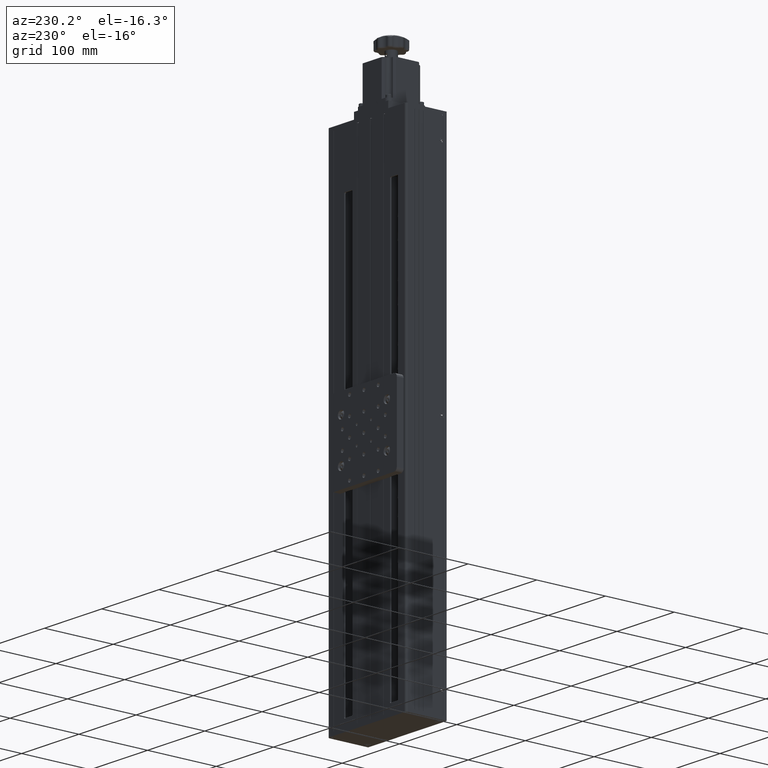
[diagram: clean part render]
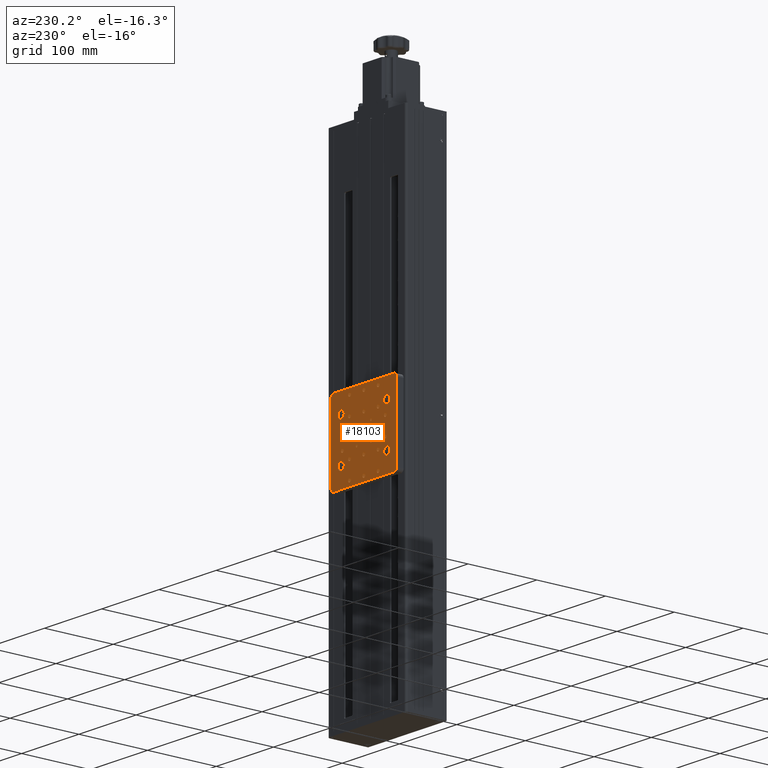
[diagram: same view with one face highlighted and labeled with its STEP entity id]
A machine part, auxiliary view. The second image highlights one B-rep face of the part: STEP entity #18103.
In plain terms, the highlighted planar face has unit normal (0, -1, 0).
Its self-contained STEP definition (entity closure, byte-faithful):
#7 = DIRECTION ( 'NONE',  ( -1.581389297847712642E-17, 1.000000000000000000, -6.467343205884651130E-19 ) ) ;
#13 = EDGE_CURVE ( 'NONE', #4402, #17654, #4426, .T. ) ;
#15 = EDGE_CURVE ( 'NONE', #2237, #17224, #24270, .T. ) ;
#38 = AXIS2_PLACEMENT_3D ( 'NONE', #16164, #7040, #18786 ) ;
#273 = CARTESIAN_POINT ( 'NONE',  ( 14.38919164396006245, 60.58234937935193898, -18.29945070542932939 ) ) ;
#285 = ORIENTED_EDGE ( 'NONE', *, *, #21064, .F. ) ;
#374 = CARTESIAN_POINT ( 'NONE',  ( 14.38919164396006245, 60.58234937935193898, 34.20054929457066351 ) ) ;
#377 = DIRECTION ( 'NONE',  ( 0.000000000000000000, 0.000000000000000000, 1.000000000000000000 ) ) ;
#496 = DIRECTION ( 'NONE',  ( 0.000000000000000000, 0.000000000000000000, 1.000000000000000000 ) ) ;
#526 = DIRECTION ( 'NONE',  ( 0.000000000000000000, 0.000000000000000000, 1.000000000000000000 ) ) ;
#547 = FACE_BOUND ( 'NONE', #9324, .T. ) ;
#634 = CARTESIAN_POINT ( 'NONE',  ( 41.88919164396007488, 60.58234937935193187, 34.20054929457067772 ) ) ;
#668 = CARTESIAN_POINT ( 'NONE',  ( -63.11080835603995354, 60.58234937935193187, -70.79945070542933649 ) ) ;
#773 = AXIS2_PLACEMENT_3D ( 'NONE', #13000, #16385, #28269 ) ;
#798 = CARTESIAN_POINT ( 'NONE',  ( 1.889191643960062450, 60.58234937935193898, -30.79945070542932939 ) ) ;
#829 = FACE_BOUND ( 'NONE', #3824, .T. ) ;
#895 = VECTOR ( 'NONE', #21066, 1000.000000000000000 ) ;
#962 = EDGE_CURVE ( 'NONE', #14524, #16473, #10311, .T. ) ;
#978 = DIRECTION ( 'NONE',  ( -1.581389297847712642E-17, 1.000000000000000000, -6.467343205884651130E-19 ) ) ;
#987 = FACE_BOUND ( 'NONE', #28330, .T. ) ;
#1002 = AXIS2_PLACEMENT_3D ( 'NONE', #23223, #18912, #4858 ) ;
#1006 = DIRECTION ( 'NONE',  ( -1.581389297847712642E-17, 1.000000000000000000, -6.467343205884651130E-19 ) ) ;
#1042 = CARTESIAN_POINT ( 'NONE',  ( -35.61080835603993933, 60.58234937935193898, -68.29945070542933649 ) ) ;
#1094 = CARTESIAN_POINT ( 'NONE',  ( -10.61080835603993755, 60.58234937935193898, -43.29945070542932939 ) ) ;
#1158 = EDGE_CURVE ( 'NONE', #29460, #10063, #5322, .T. ) ;
#1240 = EDGE_CURVE ( 'NONE', #4550, #19973, #10984, .T. ) ;
#1248 = DIRECTION ( 'NONE',  ( -1.581389297847712642E-17, 1.000000000000000000, -6.467343205884651130E-19 ) ) ;
#1445 = EDGE_CURVE ( 'NONE', #12245, #12937, #2865, .T. ) ;
#1527 = DIRECTION ( 'NONE',  ( 0.000000000000000000, 0.000000000000000000, 1.000000000000000000 ) ) ;
#1571 = DIRECTION ( 'NONE',  ( 0.000000000000000000, 0.000000000000000000, 1.000000000000000000 ) ) ;
#1582 = CARTESIAN_POINT ( 'NONE',  ( -10.61080835603993577, 60.58234937935193898, -68.29945070542933649 ) ) ;
#1585 = FACE_BOUND ( 'NONE', #13759, .T. ) ;
#1587 = AXIS2_PLACEMENT_3D ( 'NONE', #22680, #8781, #6477 ) ;
#1588 = CARTESIAN_POINT ( 'NONE',  ( 26.88919164396007844, 60.58234937935193898, -28.29945070542933649 ) ) ;
#1609 = AXIS2_PLACEMENT_3D ( 'NONE', #8226, #30317, #24895 ) ;
#1651 = AXIS2_PLACEMENT_3D ( 'NONE', #3746, #27525, #10378 ) ;
#1848 = EDGE_LOOP ( 'NONE', ( #6954, #24005 ) ) ;
#1850 = CARTESIAN_POINT ( 'NONE',  ( -50.61080835603994643, 60.58234937935193187, -53.79945070542932228 ) ) ;
#2147 = EDGE_CURVE ( 'NONE', #15525, #16985, #29778, .T. ) ;
#2180 = VECTOR ( 'NONE', #13756, 1000.000000000000000 ) ;
#2237 = VERTEX_POINT ( 'NONE', #24155 ) ;
#2304 = ORIENTED_EDGE ( 'NONE', *, *, #8244, .F. ) ;
#2329 = EDGE_CURVE ( 'NONE', #9898, #27392, #3456, .T. ) ;
#2330 = CARTESIAN_POINT ( 'NONE',  ( -68.11080835603995354, 60.58234937935193187, -70.79945070542933649 ) ) ;
#2380 = DIRECTION ( 'NONE',  ( -1.581389297847712642E-17, 1.000000000000000000, -6.467343205884651130E-19 ) ) ;
#2398 = AXIS2_PLACEMENT_3D ( 'NONE', #11532, #23251, #14156 ) ;
#2473 = ORIENTED_EDGE ( 'NONE', *, *, #27346, .F. ) ;
#2531 = DIRECTION ( 'NONE',  ( 0.000000000000000000, 0.000000000000000000, 1.000000000000000000 ) ) ;
#2565 = ORIENTED_EDGE ( 'NONE', *, *, #18290, .F. ) ;
#2603 = AXIS2_PLACEMENT_3D ( 'NONE', #23816, #16876, #28319 ) ;
#2744 = EDGE_CURVE ( 'NONE', #26838, #4789, #4079, .T. ) ;
#2780 = DIRECTION ( 'NONE',  ( 0.000000000000000000, 0.000000000000000000, 1.000000000000000000 ) ) ;
#2829 = ORIENTED_EDGE ( 'NONE', *, *, #15, .T. ) ;
#2865 = CIRCLE ( 'NONE', #6837, 5.499999999999998224 ) ;
#2871 = VERTEX_POINT ( 'NONE', #4761 ) ;
#2875 = ORIENTED_EDGE ( 'NONE', *, *, #26592, .F. ) ;
#2912 = EDGE_CURVE ( 'NONE', #26329, #22225, #10505, .T. ) ;
#3017 = VERTEX_POINT ( 'NONE', #22042 ) ;
#3040 = CIRCLE ( 'NONE', #21280, 1.649999999999988365 ) ;
#3042 = DIRECTION ( 'NONE',  ( -1.581389297847712642E-17, 1.000000000000000000, -6.467343205884651130E-19 ) ) ;
#3136 = DIRECTION ( 'NONE',  ( -1.581389297847712642E-17, 1.000000000000000000, -6.467343205884651130E-19 ) ) ;
#3141 = AXIS2_PLACEMENT_3D ( 'NONE', #21196, #7593, #18737 ) ;
#3226 = VERTEX_POINT ( 'NONE', #25596 ) ;
#3304 = PLANE ( 'NONE',  #4975 ) ;
#3364 = EDGE_CURVE ( 'NONE', #15874, #7721, #28294, .T. ) ;
#3441 = EDGE_LOOP ( 'NONE', ( #13254, #24602 ) ) ;
#3443 = DIRECTION ( 'NONE',  ( 0.000000000000000000, 0.000000000000000000, -1.000000000000000000 ) ) ;
#3453 = FACE_BOUND ( 'NONE', #16244, .T. ) ;
#3456 = LINE ( 'NONE', #3919, #23844 ) ;
#3467 = CIRCLE ( 'NONE', #5457, 2.499999999999988454 ) ;
#3585 = CARTESIAN_POINT ( 'NONE',  ( 1.889191643960062894, 60.58234937935193898, -32.44945070542931376 ) ) ;
#3615 = AXIS2_PLACEMENT_3D ( 'NONE', #19448, #21609, #12352 ) ;
#3718 = VERTEX_POINT ( 'NONE', #25860 ) ;
#3746 = CARTESIAN_POINT ( 'NONE',  ( -35.61080835603993933, 60.58234937935193898, 6.700549294570673275 ) ) ;
#3785 = ORIENTED_EDGE ( 'NONE', *, *, #2744, .F. ) ;
#3824 = EDGE_LOOP ( 'NONE', ( #17802, #22620 ) ) ;
#3846 = AXIS2_PLACEMENT_3D ( 'NONE', #12714, #28767, #26607 ) ;
#3890 = EDGE_CURVE ( 'NONE', #7568, #16917, #29228, .T. ) ;
#3919 = CARTESIAN_POINT ( 'NONE',  ( 46.88919164396006778, 60.58234937935193898, 39.20054929457067772 ) ) ;
#3923 = EDGE_CURVE ( 'NONE', #3017, #22243, #5550, .T. ) ;
#3991 = DIRECTION ( 'NONE',  ( 0.000000000000000000, 0.000000000000000000, 1.000000000000000000 ) ) ;
#4011 = CARTESIAN_POINT ( 'NONE',  ( 14.38919164396006245, 60.58234937935193898, 9.200549294570661729 ) ) ;
#4079 = CIRCLE ( 'NONE', #15925, 2.499999999999988454 ) ;
#4089 = ORIENTED_EDGE ( 'NONE', *, *, #23798, .F. ) ;
#4095 = EDGE_LOOP ( 'NONE', ( #20908, #22479 ) ) ;
#4217 = AXIS2_PLACEMENT_3D ( 'NONE', #15098, #24515, #22658 ) ;
#4321 = VERTEX_POINT ( 'NONE', #29187 ) ;
#4349 = AXIS2_PLACEMENT_3D ( 'NONE', #6879, #16295, #16598 ) ;
#4402 = VERTEX_POINT ( 'NONE', #4011 ) ;
#4426 = CIRCLE ( 'NONE', #5408, 2.499999999999988454 ) ;
#4550 = VERTEX_POINT ( 'NONE', #19884 ) ;
#4653 = CIRCLE ( 'NONE', #22401, 2.499999999999988454 ) ;
#4678 = DIRECTION ( 'NONE',  ( -1.581389297847712642E-17, 1.000000000000000000, -6.467343205884651130E-19 ) ) ;
#4761 = CARTESIAN_POINT ( 'NONE',  ( 1.889191643960390854, 60.58234937935193898, -7.449450705429306652 ) ) ;
#4789 = VERTEX_POINT ( 'NONE', #15563 ) ;
#4807 = CARTESIAN_POINT ( 'NONE',  ( 41.88919164396007488, 60.58234937935193898, 39.20054929457067772 ) ) ;
#4841 = EDGE_CURVE ( 'NONE', #9900, #29660, #28876, .T. ) ;
#4858 = DIRECTION ( 'NONE',  ( 0.000000000000000000, 0.000000000000000000, 1.000000000000000000 ) ) ;
#4873 = EDGE_CURVE ( 'NONE', #4550, #17341, #22455, .T. ) ;
#4937 = DIRECTION ( 'NONE',  ( 0.000000000000000000, 0.000000000000000000, 1.000000000000000000 ) ) ;
#4948 = DIRECTION ( 'NONE',  ( 0.000000000000000000, 0.000000000000000000, 1.000000000000000000 ) ) ;
#4975 = AXIS2_PLACEMENT_3D ( 'NONE', #19373, #5623, #10397 ) ;
#4991 = DIRECTION ( 'NONE',  ( -1.000000000000000000, -1.581389297847712334E-17, -2.775557561562891351E-17 ) ) ;
#4992 = CIRCLE ( 'NONE', #38, 2.499999999999988454 ) ;
#5005 = CARTESIAN_POINT ( 'NONE',  ( 46.88919164396006778, 60.58234937935193187, -18.19945070542932442 ) ) ;
#5087 = AXIS2_PLACEMENT_3D ( 'NONE', #668, #3136, #3443 ) ;
#5111 = CIRCLE ( 'NONE', #1651, 2.499999999999988454 ) ;
#5119 = AXIS2_PLACEMENT_3D ( 'NONE', #16760, #15040, #377 ) ;
#5155 = CIRCLE ( 'NONE', #11062, 5.499999999999998224 ) ;
#5272 = EDGE_CURVE ( 'NONE', #22243, #3017, #21691, .T. ) ;
#5318 = FACE_BOUND ( 'NONE', #28488, .T. ) ;
#5322 = CIRCLE ( 'NONE', #3846, 5.499999999999998224 ) ;
#5408 = AXIS2_PLACEMENT_3D ( 'NONE', #10219, #23972, #496 ) ;
#5428 = ORIENTED_EDGE ( 'NONE', *, *, #4841, .F. ) ;
#5457 = AXIS2_PLACEMENT_3D ( 'NONE', #9380, #23866, #18805 ) ;
#5521 = EDGE_CURVE ( 'NONE', #3226, #20289, #11347, .T. ) ;
#5550 = CIRCLE ( 'NONE', #1609, 2.499999999999988454 ) ;
#5580 = DIRECTION ( 'NONE',  ( -1.581389297847712642E-17, 1.000000000000000000, -6.467343205884651130E-19 ) ) ;
#5623 = DIRECTION ( 'NONE',  ( 1.581389297847712642E-17, -1.000000000000000000, 6.467343205884923649E-19 ) ) ;
#5638 = AXIS2_PLACEMENT_3D ( 'NONE', #30530, #27737, #30065 ) ;
#5692 = FACE_BOUND ( 'NONE', #24685, .T. ) ;
#5803 = ORIENTED_EDGE ( 'NONE', *, *, #17291, .F. ) ;
#5810 = AXIS2_PLACEMENT_3D ( 'NONE', #1582, #978, #22431 ) ;
#5826 = AXIS2_PLACEMENT_3D ( 'NONE', #22681, #13586, #1527 ) ;
#5958 = EDGE_CURVE ( 'NONE', #8636, #23854, #15783, .T. ) ;
#6120 = EDGE_LOOP ( 'NONE', ( #24119, #29678 ) ) ;
#6212 = AXIS2_PLACEMENT_3D ( 'NONE', #10774, #30089, #11235 ) ;
#6367 = AXIS2_PLACEMENT_3D ( 'NONE', #634, #5580, #7751 ) ;
#6388 = VECTOR ( 'NONE', #4991, 1000.000000000000000 ) ;
#6477 = DIRECTION ( 'NONE',  ( 0.000000000000000000, 0.000000000000000000, 1.000000000000000000 ) ) ;
#6502 = VERTEX_POINT ( 'NONE', #9441 ) ;
#6576 = VECTOR ( 'NONE', #28371, 1000.000000000000000 ) ;
#6651 = CARTESIAN_POINT ( 'NONE',  ( 46.88919164396006778, 60.58234937935193898, 39.20054929457067772 ) ) ;
#6709 = CIRCLE ( 'NONE', #7692, 2.499999999999988454 ) ;
#6725 = EDGE_CURVE ( 'NONE', #12937, #12245, #21000, .T. ) ;
#6787 = EDGE_CURVE ( 'NONE', #22621, #28447, #9186, .T. ) ;
#6837 = AXIS2_PLACEMENT_3D ( 'NONE', #21181, #7, #10184 ) ;
#6879 = CARTESIAN_POINT ( 'NONE',  ( -35.61080835603993933, 60.58234937935193898, -18.29945070542932939 ) ) ;
#6954 = ORIENTED_EDGE ( 'NONE', *, *, #23588, .F. ) ;
#6955 = CARTESIAN_POINT ( 'NONE',  ( -35.61080835603993933, 60.58234937935193898, -40.79945070542934360 ) ) ;
#7036 = CARTESIAN_POINT ( 'NONE',  ( 14.38919164396006245, 60.58234937935193898, -65.79945070542935071 ) ) ;
#7040 = DIRECTION ( 'NONE',  ( -1.581389297847712642E-17, 1.000000000000000000, -6.467343205884651130E-19 ) ) ;
#7186 = ORIENTED_EDGE ( 'NONE', *, *, #20208, .F. ) ;
#7188 = CARTESIAN_POINT ( 'NONE',  ( -10.61080835603993933, 60.58234937935193898, 29.20054929457068482 ) ) ;
#7206 = CIRCLE ( 'NONE', #6212, 2.499999999999988454 ) ;
#7376 = VERTEX_POINT ( 'NONE', #12116 ) ;
#7430 = CARTESIAN_POINT ( 'NONE',  ( -23.11080835603994643, 60.58234937935193898, -29.14945070542901107 ) ) ;
#7568 = VERTEX_POINT ( 'NONE', #17651 ) ;
#7593 = DIRECTION ( 'NONE',  ( -1.581389297847712642E-17, 1.000000000000000000, -6.467343205884651130E-19 ) ) ;
#7632 = EDGE_LOOP ( 'NONE', ( #12141, #19091 ) ) ;
#7643 = FACE_BOUND ( 'NONE', #26550, .T. ) ;
#7654 = VERTEX_POINT ( 'NONE', #1850 ) ;
#7692 = AXIS2_PLACEMENT_3D ( 'NONE', #13450, #1248, #10971 ) ;
#7721 = VERTEX_POINT ( 'NONE', #6955 ) ;
#7751 = DIRECTION ( 'NONE',  ( 0.000000000000000000, 0.000000000000000000, -1.000000000000000000 ) ) ;
#7793 = FACE_BOUND ( 'NONE', #16974, .T. ) ;
#7801 = VERTEX_POINT ( 'NONE', #17118 ) ;
#7839 = DIRECTION ( 'NONE',  ( 0.000000000000000000, 0.000000000000000000, 1.000000000000000000 ) ) ;
#7886 = ORIENTED_EDGE ( 'NONE', *, *, #17655, .F. ) ;
#7905 = CIRCLE ( 'NONE', #1002, 1.649999999999988365 ) ;
#7962 = CIRCLE ( 'NONE', #24238, 2.499999999999988454 ) ;
#8007 = DIRECTION ( 'NONE',  ( -1.581389297847712642E-17, 1.000000000000000000, -6.467343205884651130E-19 ) ) ;
#8094 = FACE_BOUND ( 'NONE', #18767, .T. ) ;
#8110 = CARTESIAN_POINT ( 'NONE',  ( -35.61080835603993933, 60.58234937935193898, 6.700549294570673275 ) ) ;
#8198 = LINE ( 'NONE', #6651, #2180 ) ;
#8200 = ORIENTED_EDGE ( 'NONE', *, *, #3364, .F. ) ;
#8226 = CARTESIAN_POINT ( 'NONE',  ( -10.61080835603994821, 60.58234937935193898, -18.29945070542932939 ) ) ;
#8229 = DIRECTION ( 'NONE',  ( 0.000000000000000000, 0.000000000000000000, 1.000000000000000000 ) ) ;
#8244 = EDGE_CURVE ( 'NONE', #22847, #14854, #14478, .T. ) ;
#8249 = DIRECTION ( 'NONE',  ( -1.581389297847712642E-17, 1.000000000000000000, -6.467343205884651130E-19 ) ) ;
#8319 = DIRECTION ( 'NONE',  ( 0.000000000000000000, 0.000000000000000000, 1.000000000000000000 ) ) ;
#8349 = CIRCLE ( 'NONE', #25634, 1.649999999999988365 ) ;
#8352 = CARTESIAN_POINT ( 'NONE',  ( 14.38919164396006245, 60.58234937935193898, -43.29945070542932939 ) ) ;
#8366 = AXIS2_PLACEMENT_3D ( 'NONE', #11769, #12382, #28446 ) ;
#8402 = DIRECTION ( 'NONE',  ( -1.581389297847712642E-17, 1.000000000000000000, -6.467343205884651130E-19 ) ) ;
#8465 = VECTOR ( 'NONE', #28914, 1000.000000000000000 ) ;
#8484 = CIRCLE ( 'NONE', #1587, 1.649999999999988365 ) ;
#8521 = DIRECTION ( 'NONE',  ( -1.581389297847712642E-17, 1.000000000000000000, -6.467343205884651130E-19 ) ) ;
#8571 = ORIENTED_EDGE ( 'NONE', *, *, #19721, .F. ) ;
#8599 = EDGE_CURVE ( 'NONE', #23854, #8636, #5111, .T. ) ;
#8636 = VERTEX_POINT ( 'NONE', #28145 ) ;
#8640 = AXIS2_PLACEMENT_3D ( 'NONE', #21390, #21543, #23695 ) ;
#8708 = LINE ( 'NONE', #11177, #895 ) ;
#8770 = CARTESIAN_POINT ( 'NONE',  ( -35.61080835603993933, 60.58234937935193898, 31.70054929457067416 ) ) ;
#8775 = CARTESIAN_POINT ( 'NONE',  ( -50.61080835603994643, 60.58234937935193187, 17.20054929457067061 ) ) ;
#8781 = DIRECTION ( 'NONE',  ( -1.581389297847712642E-17, 1.000000000000000000, -6.467343205884651130E-19 ) ) ;
#8788 = CARTESIAN_POINT ( 'NONE',  ( -10.61080835603993755, 60.58234937935193898, -40.79945070542934360 ) ) ;
#8827 = CARTESIAN_POINT ( 'NONE',  ( -68.11080835603995354, 60.58234937935193187, 39.20054929457067772 ) ) ;
#8852 = CIRCLE ( 'NONE', #26118, 1.649999999999988365 ) ;
#8872 = DIRECTION ( 'NONE',  ( 0.000000000000000000, 0.000000000000000000, 1.000000000000000000 ) ) ;
#8916 = VERTEX_POINT ( 'NONE', #17412 ) ;
#8932 = CARTESIAN_POINT ( 'NONE',  ( -48.11080835603994643, 60.58234937935193898, -30.79945070542933294 ) ) ;
#8988 = EDGE_CURVE ( 'NONE', #13105, #23712, #12524, .T. ) ;
#9186 = CIRCLE ( 'NONE', #26442, 2.499999999999988454 ) ;
#9230 = CARTESIAN_POINT ( 'NONE',  ( -63.11080835603992512, 60.58234937935193187, 39.20054929457067772 ) ) ;
#9324 = EDGE_LOOP ( 'NONE', ( #5803, #29207 ) ) ;
#9329 = EDGE_CURVE ( 'NONE', #7654, #29749, #5155, .T. ) ;
#9380 = CARTESIAN_POINT ( 'NONE',  ( 26.88919164396007844, 60.58234937935193898, -30.79945070542932584 ) ) ;
#9389 = EDGE_CURVE ( 'NONE', #22138, #6502, #4653, .T. ) ;
#9396 = AXIS2_PLACEMENT_3D ( 'NONE', #273, #3042, #23738 ) ;
#9410 = EDGE_LOOP ( 'NONE', ( #13459, #12697 ) ) ;
#9441 = CARTESIAN_POINT ( 'NONE',  ( 14.38919164396006245, 60.58234937935193898, -70.79945070542932228 ) ) ;
#9445 = VERTEX_POINT ( 'NONE', #3585 ) ;
#9447 = AXIS2_PLACEMENT_3D ( 'NONE', #28458, #4678, #16718 ) ;
#9477 = AXIS2_PLACEMENT_3D ( 'NONE', #15356, #1006, #17223 ) ;
#9553 = CIRCLE ( 'NONE', #3141, 1.649999999999988365 ) ;
#9599 = ORIENTED_EDGE ( 'NONE', *, *, #8988, .F. ) ;
#9615 = VERTEX_POINT ( 'NONE', #7430 ) ;
#9633 = EDGE_LOOP ( 'NONE', ( #27096, #23382 ) ) ;
#9705 = EDGE_LOOP ( 'NONE', ( #15672, #10039 ) ) ;
#9720 = CARTESIAN_POINT ( 'NONE',  ( -50.61080835603994643, 60.58234937935193187, -48.29945070542932939 ) ) ;
#9759 = CARTESIAN_POINT ( 'NONE',  ( 26.88919164396007844, 60.58234937935193898, -3.299450705429336939 ) ) ;
#9898 = VERTEX_POINT ( 'NONE', #11421 ) ;
#9900 = VERTEX_POINT ( 'NONE', #25490 ) ;
#9914 = CARTESIAN_POINT ( 'NONE',  ( 46.88919164396006778, 60.58234937935193898, -75.79945070542933649 ) ) ;
#10039 = ORIENTED_EDGE ( 'NONE', *, *, #3923, .F. ) ;
#10063 = VERTEX_POINT ( 'NONE', #8775 ) ;
#10184 = DIRECTION ( 'NONE',  ( 0.000000000000000000, 0.000000000000000000, 1.000000000000000000 ) ) ;
#10219 = CARTESIAN_POINT ( 'NONE',  ( 14.38919164396006245, 60.58234937935193898, 6.700549294570673275 ) ) ;
#10231 = CIRCLE ( 'NONE', #11237, 2.499999999999988454 ) ;
#10234 = EDGE_LOOP ( 'NONE', ( #27759, #18852 ) ) ;
#10244 = CIRCLE ( 'NONE', #23560, 5.000000000000004441 ) ;
#10246 = FACE_BOUND ( 'NONE', #4095, .T. ) ;
#10274 = FACE_BOUND ( 'NONE', #20532, .T. ) ;
#10311 = CIRCLE ( 'NONE', #12803, 2.499999999999988454 ) ;
#10378 = DIRECTION ( 'NONE',  ( 0.000000000000000000, 0.000000000000000000, 1.000000000000000000 ) ) ;
#10397 = DIRECTION ( 'NONE',  ( 2.775557561562891351E-17, -6.467343205884918834E-19, -1.000000000000000000 ) ) ;
#10404 = EDGE_CURVE ( 'NONE', #13179, #12184, #18451, .T. ) ;
#10422 = AXIS2_PLACEMENT_3D ( 'NONE', #1094, #29370, #22856 ) ;
#10505 = CIRCLE ( 'NONE', #28272, 2.499999999999988454 ) ;
#10577 = LINE ( 'NONE', #20004, #18116 ) ;
#10601 = CARTESIAN_POINT ( 'NONE',  ( -10.61080835603993755, 60.58234937935193898, 6.700549294570673275 ) ) ;
#10653 = CIRCLE ( 'NONE', #19527, 5.499999999999998224 ) ;
#10774 = CARTESIAN_POINT ( 'NONE',  ( 14.38919164396006245, 60.58234937935193898, -68.29945070542933649 ) ) ;
#10923 = CARTESIAN_POINT ( 'NONE',  ( -48.11080835603994643, 60.58234937935193898, -5.799450705429328501 ) ) ;
#10971 = DIRECTION ( 'NONE',  ( 0.000000000000000000, 0.000000000000000000, 1.000000000000000000 ) ) ;
#10973 = ORIENTED_EDGE ( 'NONE', *, *, #27095, .F. ) ;
#10984 = LINE ( 'NONE', #8827, #27526 ) ;
#11044 = FACE_BOUND ( 'NONE', #9705, .T. ) ;
#11054 = ORIENTED_EDGE ( 'NONE', *, *, #28672, .F. ) ;
#11062 = AXIS2_PLACEMENT_3D ( 'NONE', #12416, #19653, #28211 ) ;
#11177 = CARTESIAN_POINT ( 'NONE',  ( 46.68919164396007204, 60.58234937935193187, -18.19945070542932442 ) ) ;
#11235 = DIRECTION ( 'NONE',  ( 0.000000000000000000, 0.000000000000000000, 1.000000000000000000 ) ) ;
#11237 = AXIS2_PLACEMENT_3D ( 'NONE', #20606, #30042, #8872 ) ;
#11340 = ORIENTED_EDGE ( 'NONE', *, *, #19674, .T. ) ;
#11347 = CIRCLE ( 'NONE', #9396, 2.499999999999988454 ) ;
#11350 = VERTEX_POINT ( 'NONE', #13923 ) ;
#11375 = ORIENTED_EDGE ( 'NONE', *, *, #24098, .F. ) ;
#11403 = DIRECTION ( 'NONE',  ( 0.000000000000000000, 0.000000000000000000, 1.000000000000000000 ) ) ;
#11421 = CARTESIAN_POINT ( 'NONE',  ( 46.88919164396006778, 60.58234937935193898, 34.20054929457067772 ) ) ;
#11532 = CARTESIAN_POINT ( 'NONE',  ( 29.38919164396008199, 60.58234937935193187, 11.70054929457067061 ) ) ;
#11636 = CIRCLE ( 'NONE', #773, 2.499999999999988454 ) ;
#11729 = VERTEX_POINT ( 'NONE', #21401 ) ;
#11769 = CARTESIAN_POINT ( 'NONE',  ( -10.61080835603994821, 60.58234937935193898, -18.29945070542932939 ) ) ;
#12005 = CARTESIAN_POINT ( 'NONE',  ( 26.88919164396007844, 60.58234937935193898, -8.299450705429313402 ) ) ;
#12034 = AXIS2_PLACEMENT_3D ( 'NONE', #19031, #14098, #23949 ) ;
#12076 = CARTESIAN_POINT ( 'NONE',  ( -10.61080835603993755, 60.58234937935193898, -45.79945070542931518 ) ) ;
#12110 = CARTESIAN_POINT ( 'NONE',  ( 14.38919164396006245, 60.58234937935193898, -40.79945070542934360 ) ) ;
#12116 = CARTESIAN_POINT ( 'NONE',  ( 1.889191643960062450, 60.58234937935193898, -29.14945070542934147 ) ) ;
#12141 = ORIENTED_EDGE ( 'NONE', *, *, #9389, .F. ) ;
#12184 = VERTEX_POINT ( 'NONE', #27810 ) ;
#12245 = VERTEX_POINT ( 'NONE', #13761 ) ;
#12250 = DIRECTION ( 'NONE',  ( -1.581389297847712642E-17, 1.000000000000000000, -6.467343205884651130E-19 ) ) ;
#12352 = DIRECTION ( 'NONE',  ( 0.000000000000000000, 0.000000000000000000, 1.000000000000000000 ) ) ;
#12361 = AXIS2_PLACEMENT_3D ( 'NONE', #8352, #22241, #24714 ) ;
#12363 = CARTESIAN_POINT ( 'NONE',  ( 46.88919164396006778, 60.58234937935193187, -18.39945070542932726 ) ) ;
#12382 = DIRECTION ( 'NONE',  ( -1.581389297847712642E-17, 1.000000000000000000, -6.467343205884651130E-19 ) ) ;
#12400 = DIRECTION ( 'NONE',  ( -1.581389297847712642E-17, 1.000000000000000000, -6.467343205884651130E-19 ) ) ;
#12416 = CARTESIAN_POINT ( 'NONE',  ( -50.61080835603994643, 60.58234937935193187, -48.29945070542932939 ) ) ;
#12434 = CARTESIAN_POINT ( 'NONE',  ( -10.61080835603993755, 60.58234937935193898, 9.200549294570661729 ) ) ;
#12494 = FACE_BOUND ( 'NONE', #9633, .T. ) ;
#12509 = DIRECTION ( 'NONE',  ( -1.581389297847712642E-17, 1.000000000000000000, -6.467343205884651130E-19 ) ) ;
#12524 = CIRCLE ( 'NONE', #19915, 2.499999999999988454 ) ;
#12635 = VERTEX_POINT ( 'NONE', #25761 ) ;
#12678 = CARTESIAN_POINT ( 'NONE',  ( 46.68919164396007204, 60.58234937935193187, -18.19945070542932442 ) ) ;
#12697 = ORIENTED_EDGE ( 'NONE', *, *, #22228, .F. ) ;
#12706 = LINE ( 'NONE', #24571, #8465 ) ;
#12714 = CARTESIAN_POINT ( 'NONE',  ( -50.61080835603994643, 60.58234937935193187, 11.70054929457067061 ) ) ;
#12720 = VERTEX_POINT ( 'NONE', #12005 ) ;
#12742 = CARTESIAN_POINT ( 'NONE',  ( 14.38919164396006245, 60.58234937935193898, 6.700549294570673275 ) ) ;
#12803 = AXIS2_PLACEMENT_3D ( 'NONE', #13208, #8402, #29888 ) ;
#12807 = CARTESIAN_POINT ( 'NONE',  ( 26.88919164396007844, 60.58234937935193898, -5.799450705429325836 ) ) ;
#12887 = FACE_OUTER_BOUND ( 'NONE', #29524, .T. ) ;
#12908 = ORIENTED_EDGE ( 'NONE', *, *, #25626, .F. ) ;
#12913 = ORIENTED_EDGE ( 'NONE', *, *, #29422, .F. ) ;
#12936 = DIRECTION ( 'NONE',  ( -1.581389297847712642E-17, 1.000000000000000000, -6.467343205884651130E-19 ) ) ;
#12937 = VERTEX_POINT ( 'NONE', #29601 ) ;
#13000 = CARTESIAN_POINT ( 'NONE',  ( 14.38919164396006245, 60.58234937935193898, -18.29945070542932939 ) ) ;
#13077 = EDGE_CURVE ( 'NONE', #7721, #15874, #21958, .T. ) ;
#13105 = VERTEX_POINT ( 'NONE', #19228 ) ;
#13167 = ORIENTED_EDGE ( 'NONE', *, *, #6787, .F. ) ;
#13179 = VERTEX_POINT ( 'NONE', #374 ) ;
#13208 = CARTESIAN_POINT ( 'NONE',  ( -10.61080835603993755, 60.58234937935193898, -43.29945070542932939 ) ) ;
#13254 = ORIENTED_EDGE ( 'NONE', *, *, #21321, .F. ) ;
#13450 = CARTESIAN_POINT ( 'NONE',  ( 26.88919164396007844, 60.58234937935193898, -5.799450705429325836 ) ) ;
#13459 = ORIENTED_EDGE ( 'NONE', *, *, #13, .F. ) ;
#13478 = DIRECTION ( 'NONE',  ( 0.000000000000000000, 0.000000000000000000, 1.000000000000000000 ) ) ;
#13586 = DIRECTION ( 'NONE',  ( -1.581389297847712642E-17, 1.000000000000000000, -6.467343205884651130E-19 ) ) ;
#13640 = CARTESIAN_POINT ( 'NONE',  ( -10.61080835603993755, 60.58234937935193898, 6.700549294570673275 ) ) ;
#13669 = CIRCLE ( 'NONE', #28519, 2.499999999999988454 ) ;
#13738 = EDGE_CURVE ( 'NONE', #6502, #22138, #7206, .T. ) ;
#13756 = DIRECTION ( 'NONE',  ( -1.000000000000000000, -1.581389297847712334E-17, -2.775557561562891351E-17 ) ) ;
#13759 = EDGE_LOOP ( 'NONE', ( #28165, #23924 ) ) ;
#13761 = CARTESIAN_POINT ( 'NONE',  ( 29.38919164396008199, 60.58234937935193187, -42.79945070542932939 ) ) ;
#13815 = ORIENTED_EDGE ( 'NONE', *, *, #2329, .T. ) ;
#13923 = CARTESIAN_POINT ( 'NONE',  ( -23.11080835603961958, 60.58234937935193898, -4.149450705429002184 ) ) ;
#14098 = DIRECTION ( 'NONE',  ( -1.581389297847712642E-17, 1.000000000000000000, -6.467343205884651130E-19 ) ) ;
#14156 = DIRECTION ( 'NONE',  ( 0.000000000000000000, 0.000000000000000000, 1.000000000000000000 ) ) ;
#14433 = CARTESIAN_POINT ( 'NONE',  ( 14.38919164396006245, 60.58234937935193898, 4.200549294570684822 ) ) ;
#14478 = LINE ( 'NONE', #24335, #6576 ) ;
#14514 = DIRECTION ( 'NONE',  ( -1.581389297847712642E-17, 1.000000000000000000, -6.467343205884651130E-19 ) ) ;
#14524 = VERTEX_POINT ( 'NONE', #8788 ) ;
#14599 = FACE_BOUND ( 'NONE', #1848, .T. ) ;
#14685 = VERTEX_POINT ( 'NONE', #4807 ) ;
#14782 = AXIS2_PLACEMENT_3D ( 'NONE', #9720, #21613, #2780 ) ;
#14854 = VERTEX_POINT ( 'NONE', #12678 ) ;
#14888 = FACE_BOUND ( 'NONE', #15437, .T. ) ;
#15040 = DIRECTION ( 'NONE',  ( -1.581389297847712642E-17, 1.000000000000000000, -6.467343205884651130E-19 ) ) ;
#15077 = EDGE_CURVE ( 'NONE', #4321, #2237, #10244, .T. ) ;
#15093 = DIRECTION ( 'NONE',  ( 0.000000000000000000, 0.000000000000000000, 1.000000000000000000 ) ) ;
#15098 = CARTESIAN_POINT ( 'NONE',  ( 29.38919164396008199, 60.58234937935193187, -48.29945070542932939 ) ) ;
#15322 = CARTESIAN_POINT ( 'NONE',  ( 26.88919164396007844, 60.58234937935193898, -30.79945070542932584 ) ) ;
#15356 = CARTESIAN_POINT ( 'NONE',  ( -35.61080835603993933, 60.58234937935193898, -43.29945070542932939 ) ) ;
#15437 = EDGE_LOOP ( 'NONE', ( #10973, #5428 ) ) ;
#15491 = CIRCLE ( 'NONE', #25397, 2.499999999999988454 ) ;
#15525 = VERTEX_POINT ( 'NONE', #29653 ) ;
#15563 = CARTESIAN_POINT ( 'NONE',  ( -48.11080835603994643, 60.58234937935193898, -33.29945070542932228 ) ) ;
#15571 = EDGE_CURVE ( 'NONE', #28447, #22621, #29508, .T. ) ;
#15672 = ORIENTED_EDGE ( 'NONE', *, *, #5272, .F. ) ;
#15783 = CIRCLE ( 'NONE', #23657, 2.499999999999988454 ) ;
#15874 = VERTEX_POINT ( 'NONE', #24764 ) ;
#15920 = ORIENTED_EDGE ( 'NONE', *, *, #4873, .T. ) ;
#15923 = EDGE_CURVE ( 'NONE', #14854, #27392, #8708, .T. ) ;
#15925 = AXIS2_PLACEMENT_3D ( 'NONE', #8932, #22563, #11403 ) ;
#16164 = CARTESIAN_POINT ( 'NONE',  ( 14.38919164396006245, 60.58234937935193898, 31.70054929457067416 ) ) ;
#16190 = CIRCLE ( 'NONE', #4349, 2.499999999999988454 ) ;
#16244 = EDGE_LOOP ( 'NONE', ( #3785, #8571 ) ) ;
#16295 = DIRECTION ( 'NONE',  ( -1.581389297847712642E-17, 1.000000000000000000, -6.467343205884651130E-19 ) ) ;
#16305 = CARTESIAN_POINT ( 'NONE',  ( -35.61080835603993933, 60.58234937935193898, -15.79945070542934005 ) ) ;
#16333 = CIRCLE ( 'NONE', #20259, 5.499999999999998224 ) ;
#16337 = CARTESIAN_POINT ( 'NONE',  ( -63.11080835603992512, 60.58234937935193187, -75.79945070542933649 ) ) ;
#16385 = DIRECTION ( 'NONE',  ( -1.581389297847712642E-17, 1.000000000000000000, -6.467343205884651130E-19 ) ) ;
#16424 = CARTESIAN_POINT ( 'NONE',  ( -35.61080835603993933, 60.58234937935193898, 34.20054929457066351 ) ) ;
#16473 = VERTEX_POINT ( 'NONE', #12076 ) ;
#16598 = DIRECTION ( 'NONE',  ( 0.000000000000000000, 0.000000000000000000, 1.000000000000000000 ) ) ;
#16605 = DIRECTION ( 'NONE',  ( 1.000000000000000000, 1.581389297847667960E-17, 2.775557561562891351E-17 ) ) ;
#16696 = EDGE_CURVE ( 'NONE', #9615, #8916, #8349, .T. ) ;
#16718 = DIRECTION ( 'NONE',  ( 0.000000000000000000, 0.000000000000000000, 1.000000000000000000 ) ) ;
#16760 = CARTESIAN_POINT ( 'NONE',  ( -10.61080835603993933, 60.58234937935193898, 31.70054929457067416 ) ) ;
#16876 = DIRECTION ( 'NONE',  ( -1.581389297847712642E-17, 1.000000000000000000, -6.467343205884651130E-19 ) ) ;
#16917 = VERTEX_POINT ( 'NONE', #16305 ) ;
#16974 = EDGE_LOOP ( 'NONE', ( #9599, #28129 ) ) ;
#16983 = CARTESIAN_POINT ( 'NONE',  ( -50.61080835603994643, 60.58234937935193187, 11.70054929457067061 ) ) ;
#16985 = VERTEX_POINT ( 'NONE', #7188 ) ;
#17057 = FACE_BOUND ( 'NONE', #6120, .T. ) ;
#17060 = CARTESIAN_POINT ( 'NONE',  ( -10.61080835603994821, 60.58234937935193898, -15.79945070542934005 ) ) ;
#17118 = CARTESIAN_POINT ( 'NONE',  ( 29.38919164396008199, 60.58234937935193187, 6.200549294570673275 ) ) ;
#17204 = FACE_BOUND ( 'NONE', #28278, .T. ) ;
#17223 = DIRECTION ( 'NONE',  ( 0.000000000000000000, 0.000000000000000000, 1.000000000000000000 ) ) ;
#17224 = VERTEX_POINT ( 'NONE', #16337 ) ;
#17264 = CIRCLE ( 'NONE', #12361, 2.499999999999988454 ) ;
#17291 = EDGE_CURVE ( 'NONE', #26153, #11729, #3467, .T. ) ;
#17341 = VERTEX_POINT ( 'NONE', #9230 ) ;
#17356 = FACE_BOUND ( 'NONE', #30003, .T. ) ;
#17359 = DIRECTION ( 'NONE',  ( -1.581389297847712642E-17, 1.000000000000000000, -6.467343205884651130E-19 ) ) ;
#17412 = CARTESIAN_POINT ( 'NONE',  ( -23.11080835603994643, 60.58234937935193898, -32.44945070542898691 ) ) ;
#17421 = DIRECTION ( 'NONE',  ( 0.000000000000000000, 0.000000000000000000, 1.000000000000000000 ) ) ;
#17479 = DIRECTION ( 'NONE',  ( 0.000000000000000000, 0.000000000000000000, 1.000000000000000000 ) ) ;
#17510 = FACE_BOUND ( 'NONE', #10234, .T. ) ;
#17528 = DIRECTION ( 'NONE',  ( 0.000000000000000000, 0.000000000000000000, 1.000000000000000000 ) ) ;
#17579 = FACE_BOUND ( 'NONE', #24072, .T. ) ;
#17587 = DIRECTION ( 'NONE',  ( -1.581389297847712642E-17, 1.000000000000000000, -6.467343205884651130E-19 ) ) ;
#17651 = CARTESIAN_POINT ( 'NONE',  ( -35.61080835603993933, 60.58234937935193898, -20.79945070542931518 ) ) ;
#17654 = VERTEX_POINT ( 'NONE', #14433 ) ;
#17655 = EDGE_CURVE ( 'NONE', #17996, #11350, #7905, .T. ) ;
#17670 = DIRECTION ( 'NONE',  ( 0.000000000000000000, 0.000000000000000000, -1.000000000000000000 ) ) ;
#17774 = CIRCLE ( 'NONE', #10422, 2.499999999999988454 ) ;
#17802 = ORIENTED_EDGE ( 'NONE', *, *, #8599, .F. ) ;
#17848 = AXIS2_PLACEMENT_3D ( 'NONE', #12742, #17359, #526 ) ;
#17929 = ORIENTED_EDGE ( 'NONE', *, *, #27367, .F. ) ;
#17996 = VERTEX_POINT ( 'NONE', #29403 ) ;
#18103 = ADVANCED_FACE ( 'NONE', ( #18222, #24205, #17579, #547, #10274, #12494, #11044, #1585, #5692, #8094, #21995, #17204, #14888, #829, #26939, #3453, #5318, #17356, #7793, #17057, #14599, #7643, #26479, #23995, #987, #17510, #10246, #12887 ), #3304, .F. ) ;
#18116 = VECTOR ( 'NONE', #16605, 1000.000000000000000 ) ;
#18118 = CIRCLE ( 'NONE', #28956, 2.499999999999988454 ) ;
#18222 = FACE_BOUND ( 'NONE', #7632, .T. ) ;
#18290 = EDGE_CURVE ( 'NONE', #3718, #12635, #19768, .T. ) ;
#18451 = CIRCLE ( 'NONE', #5638, 2.499999999999988454 ) ;
#18525 = CARTESIAN_POINT ( 'NONE',  ( 14.38919164396006245, 60.58234937935193898, -20.79945070542931518 ) ) ;
#18557 = AXIS2_PLACEMENT_3D ( 'NONE', #28930, #2380, #26469 ) ;
#18602 = EDGE_CURVE ( 'NONE', #16473, #14524, #17774, .T. ) ;
#18621 = ORIENTED_EDGE ( 'NONE', *, *, #16696, .F. ) ;
#18637 = EDGE_CURVE ( 'NONE', #18839, #27462, #17264, .T. ) ;
#18680 = CIRCLE ( 'NONE', #2398, 5.499999999999998224 ) ;
#18737 = DIRECTION ( 'NONE',  ( 0.000000000000000000, 0.000000000000000000, 1.000000000000000000 ) ) ;
#18767 = EDGE_LOOP ( 'NONE', ( #23258, #11375 ) ) ;
#18786 = DIRECTION ( 'NONE',  ( 0.000000000000000000, 0.000000000000000000, 1.000000000000000000 ) ) ;
#18805 = DIRECTION ( 'NONE',  ( 0.000000000000000000, 0.000000000000000000, 1.000000000000000000 ) ) ;
#18839 = VERTEX_POINT ( 'NONE', #19746 ) ;
#18852 = ORIENTED_EDGE ( 'NONE', *, *, #1158, .F. ) ;
#18898 = EDGE_CURVE ( 'NONE', #10063, #29460, #16333, .T. ) ;
#18912 = DIRECTION ( 'NONE',  ( -1.581389297847712642E-17, 1.000000000000000000, -6.467343205884651130E-19 ) ) ;
#19031 = CARTESIAN_POINT ( 'NONE',  ( 1.889191643960062450, 60.58234937935193898, -30.79945070542932939 ) ) ;
#19091 = ORIENTED_EDGE ( 'NONE', *, *, #13738, .F. ) ;
#19104 = CIRCLE ( 'NONE', #21075, 2.499999999999988454 ) ;
#19228 = CARTESIAN_POINT ( 'NONE',  ( -35.61080835603993933, 60.58234937935193898, -65.79945070542935071 ) ) ;
#19244 = ORIENTED_EDGE ( 'NONE', *, *, #15077, .T. ) ;
#19373 = CARTESIAN_POINT ( 'NONE',  ( 46.88919164396006778, 60.58234937935193898, 39.20054929457067772 ) ) ;
#19448 = CARTESIAN_POINT ( 'NONE',  ( 14.38919164396006245, 60.58234937935193898, -43.29945070542932939 ) ) ;
#19508 = DIRECTION ( 'NONE',  ( 0.000000000000000000, 0.000000000000000000, 1.000000000000000000 ) ) ;
#19522 = EDGE_CURVE ( 'NONE', #12184, #13179, #4992, .T. ) ;
#19527 = AXIS2_PLACEMENT_3D ( 'NONE', #21458, #26093, #4937 ) ;
#19631 = ORIENTED_EDGE ( 'NONE', *, *, #10404, .F. ) ;
#19653 = DIRECTION ( 'NONE',  ( -1.581389297847712642E-17, 1.000000000000000000, -6.467343205884651130E-19 ) ) ;
#19674 = EDGE_CURVE ( 'NONE', #19998, #4321, #12706, .T. ) ;
#19688 = EDGE_CURVE ( 'NONE', #7376, #9445, #3040, .T. ) ;
#19721 = EDGE_CURVE ( 'NONE', #4789, #26838, #7962, .T. ) ;
#19746 = CARTESIAN_POINT ( 'NONE',  ( 14.38919164396006245, 60.58234937935193898, -45.79945070542931518 ) ) ;
#19768 = CIRCLE ( 'NONE', #9447, 2.499999999999988454 ) ;
#19884 = CARTESIAN_POINT ( 'NONE',  ( -68.11080835603995354, 60.58234937935193187, 34.20054929457067772 ) ) ;
#19915 = AXIS2_PLACEMENT_3D ( 'NONE', #1042, #26993, #15093 ) ;
#19953 = ORIENTED_EDGE ( 'NONE', *, *, #15923, .F. ) ;
#19973 = VERTEX_POINT ( 'NONE', #2330 ) ;
#19998 = VERTEX_POINT ( 'NONE', #12363 ) ;
#20004 = CARTESIAN_POINT ( 'NONE',  ( 46.68919164396007204, 60.58234937935193187, -18.39945070542932726 ) ) ;
#20111 = CIRCLE ( 'NONE', #24050, 2.499999999999988454 ) ;
#20208 = EDGE_CURVE ( 'NONE', #8916, #9615, #8484, .T. ) ;
#20225 = ORIENTED_EDGE ( 'NONE', *, *, #28373, .T. ) ;
#20259 = AXIS2_PLACEMENT_3D ( 'NONE', #16983, #12509, #4948 ) ;
#20289 = VERTEX_POINT ( 'NONE', #18525 ) ;
#20348 = AXIS2_PLACEMENT_3D ( 'NONE', #22261, #24439, #19508 ) ;
#20403 = ORIENTED_EDGE ( 'NONE', *, *, #29774, .T. ) ;
#20532 = EDGE_LOOP ( 'NONE', ( #2565, #11054 ) ) ;
#20576 = DIRECTION ( 'NONE',  ( -1.581389297847712642E-17, 1.000000000000000000, -6.467343205884651130E-19 ) ) ;
#20606 = CARTESIAN_POINT ( 'NONE',  ( -10.61080835603993933, 60.58234937935193898, 31.70054929457067416 ) ) ;
#20771 = EDGE_LOOP ( 'NONE', ( #28122, #13167 ) ) ;
#20908 = ORIENTED_EDGE ( 'NONE', *, *, #30132, .F. ) ;
#21000 = CIRCLE ( 'NONE', #4217, 5.499999999999998224 ) ;
#21064 = EDGE_CURVE ( 'NONE', #11350, #17996, #25299, .T. ) ;
#21066 = DIRECTION ( 'NONE',  ( 1.000000000000000000, 1.581389297847667960E-17, 2.775557561562891351E-17 ) ) ;
#21075 = AXIS2_PLACEMENT_3D ( 'NONE', #8770, #25154, #3991 ) ;
#21181 = CARTESIAN_POINT ( 'NONE',  ( 29.38919164396008199, 60.58234937935193187, -48.29945070542932939 ) ) ;
#21196 = CARTESIAN_POINT ( 'NONE',  ( 1.889191643960390410, 60.58234937935193898, -5.799450705429318731 ) ) ;
#21280 = AXIS2_PLACEMENT_3D ( 'NONE', #798, #12400, #17479 ) ;
#21306 = CARTESIAN_POINT ( 'NONE',  ( -48.11080835603994643, 60.58234937935193898, -28.29945070542934360 ) ) ;
#21314 = ORIENTED_EDGE ( 'NONE', *, *, #5521, .F. ) ;
#21321 = EDGE_CURVE ( 'NONE', #27462, #18839, #24336, .T. ) ;
#21390 = CARTESIAN_POINT ( 'NONE',  ( -35.61080835603993933, 60.58234937935193898, -43.29945070542932939 ) ) ;
#21401 = CARTESIAN_POINT ( 'NONE',  ( 26.88919164396007844, 60.58234937935193898, -33.29945070542931518 ) ) ;
#21405 = CIRCLE ( 'NONE', #12034, 1.649999999999988365 ) ;
#21458 = CARTESIAN_POINT ( 'NONE',  ( 29.38919164396008199, 60.58234937935193187, 11.70054929457067061 ) ) ;
#21543 = DIRECTION ( 'NONE',  ( -1.581389297847712642E-17, 1.000000000000000000, -6.467343205884651130E-19 ) ) ;
#21609 = DIRECTION ( 'NONE',  ( -1.581389297847712642E-17, 1.000000000000000000, -6.467343205884651130E-19 ) ) ;
#21613 = DIRECTION ( 'NONE',  ( -1.581389297847712642E-17, 1.000000000000000000, -6.467343205884651130E-19 ) ) ;
#21658 = ORIENTED_EDGE ( 'NONE', *, *, #1240, .F. ) ;
#21691 = CIRCLE ( 'NONE', #8366, 2.499999999999988454 ) ;
#21827 = CARTESIAN_POINT ( 'NONE',  ( -35.61080835603993933, 60.58234937935193898, 31.70054929457067416 ) ) ;
#21958 = CIRCLE ( 'NONE', #8640, 2.499999999999988454 ) ;
#21995 = FACE_BOUND ( 'NONE', #9410, .T. ) ;
#22042 = CARTESIAN_POINT ( 'NONE',  ( -10.61080835603994821, 60.58234937935193898, -20.79945070542931518 ) ) ;
#22097 = CARTESIAN_POINT ( 'NONE',  ( -50.61080835603994643, 60.58234937935193187, -42.79945070542932939 ) ) ;
#22138 = VERTEX_POINT ( 'NONE', #7036 ) ;
#22145 = ORIENTED_EDGE ( 'NONE', *, *, #1445, .F. ) ;
#22225 = VERTEX_POINT ( 'NONE', #12434 ) ;
#22228 = EDGE_CURVE ( 'NONE', #17654, #4402, #27219, .T. ) ;
#22241 = DIRECTION ( 'NONE',  ( -1.581389297847712642E-17, 1.000000000000000000, -6.467343205884651130E-19 ) ) ;
#22243 = VERTEX_POINT ( 'NONE', #17060 ) ;
#22261 = CARTESIAN_POINT ( 'NONE',  ( -35.61080835603993933, 60.58234937935193898, -18.29945070542932939 ) ) ;
#22401 = AXIS2_PLACEMENT_3D ( 'NONE', #29697, #8521, #1571 ) ;
#22431 = DIRECTION ( 'NONE',  ( 0.000000000000000000, 0.000000000000000000, 1.000000000000000000 ) ) ;
#22455 = CIRCLE ( 'NONE', #18557, 5.000000000000000888 ) ;
#22479 = ORIENTED_EDGE ( 'NONE', *, *, #9329, .F. ) ;
#22511 = DIRECTION ( 'NONE',  ( 0.000000000000000000, 0.000000000000000000, 1.000000000000000000 ) ) ;
#22563 = DIRECTION ( 'NONE',  ( -1.581389297847712642E-17, 1.000000000000000000, -6.467343205884651130E-19 ) ) ;
#22620 = ORIENTED_EDGE ( 'NONE', *, *, #5958, .F. ) ;
#22621 = VERTEX_POINT ( 'NONE', #29056 ) ;
#22658 = DIRECTION ( 'NONE',  ( 0.000000000000000000, 0.000000000000000000, 1.000000000000000000 ) ) ;
#22677 = VERTEX_POINT ( 'NONE', #9759 ) ;
#22680 = CARTESIAN_POINT ( 'NONE',  ( -23.11080835603994643, 60.58234937935193898, -30.79945070542899899 ) ) ;
#22681 = CARTESIAN_POINT ( 'NONE',  ( -48.11080835603994643, 60.58234937935193898, -5.799450705429328501 ) ) ;
#22847 = VERTEX_POINT ( 'NONE', #23324 ) ;
#22856 = DIRECTION ( 'NONE',  ( 0.000000000000000000, 0.000000000000000000, 1.000000000000000000 ) ) ;
#23070 = ORIENTED_EDGE ( 'NONE', *, *, #19522, .F. ) ;
#23223 = CARTESIAN_POINT ( 'NONE',  ( -23.11080835603961958, 60.58234937935193898, -5.799450705428990993 ) ) ;
#23251 = DIRECTION ( 'NONE',  ( -1.581389297847712642E-17, 1.000000000000000000, -6.467343205884651130E-19 ) ) ;
#23258 = ORIENTED_EDGE ( 'NONE', *, *, #26461, .F. ) ;
#23324 = CARTESIAN_POINT ( 'NONE',  ( 46.68919164396007204, 60.58234937935193898, -18.39945070542932370 ) ) ;
#23338 = EDGE_CURVE ( 'NONE', #17224, #19973, #25824, .T. ) ;
#23382 = ORIENTED_EDGE ( 'NONE', *, *, #18602, .F. ) ;
#23548 = EDGE_CURVE ( 'NONE', #9445, #7376, #21405, .T. ) ;
#23560 = AXIS2_PLACEMENT_3D ( 'NONE', #24607, #8249, #17670 ) ;
#23583 = DIRECTION ( 'NONE',  ( -1.581389297847712642E-17, 1.000000000000000000, -6.467343205884651130E-19 ) ) ;
#23588 = EDGE_CURVE ( 'NONE', #24798, #2871, #9553, .T. ) ;
#23657 = AXIS2_PLACEMENT_3D ( 'NONE', #8110, #29114, #17528 ) ;
#23695 = DIRECTION ( 'NONE',  ( 0.000000000000000000, 0.000000000000000000, 1.000000000000000000 ) ) ;
#23712 = VERTEX_POINT ( 'NONE', #29192 ) ;
#23738 = DIRECTION ( 'NONE',  ( 0.000000000000000000, 0.000000000000000000, 1.000000000000000000 ) ) ;
#23798 = EDGE_CURVE ( 'NONE', #14685, #17341, #8198, .T. ) ;
#23816 = CARTESIAN_POINT ( 'NONE',  ( -23.11080835603961958, 60.58234937935193898, -5.799450705428990993 ) ) ;
#23844 = VECTOR ( 'NONE', #25232, 1000.000000000000000 ) ;
#23854 = VERTEX_POINT ( 'NONE', #29667 ) ;
#23866 = DIRECTION ( 'NONE',  ( -1.581389297847712642E-17, 1.000000000000000000, -6.467343205884651130E-19 ) ) ;
#23924 = ORIENTED_EDGE ( 'NONE', *, *, #2912, .F. ) ;
#23949 = DIRECTION ( 'NONE',  ( 0.000000000000000000, 0.000000000000000000, 1.000000000000000000 ) ) ;
#23972 = DIRECTION ( 'NONE',  ( -1.581389297847712642E-17, 1.000000000000000000, -6.467343205884651130E-19 ) ) ;
#23995 = FACE_BOUND ( 'NONE', #27867, .T. ) ;
#24005 = ORIENTED_EDGE ( 'NONE', *, *, #30452, .F. ) ;
#24050 = AXIS2_PLACEMENT_3D ( 'NONE', #15322, #27222, #8229 ) ;
#24072 = EDGE_LOOP ( 'NONE', ( #21314, #2875 ) ) ;
#24098 = EDGE_CURVE ( 'NONE', #12720, #22677, #15491, .T. ) ;
#24104 = ORIENTED_EDGE ( 'NONE', *, *, #2147, .F. ) ;
#24119 = ORIENTED_EDGE ( 'NONE', *, *, #19688, .F. ) ;
#24144 = CIRCLE ( 'NONE', #14782, 5.499999999999998224 ) ;
#24155 = CARTESIAN_POINT ( 'NONE',  ( 41.88919164396007488, 60.58234937935193187, -75.79945070542933649 ) ) ;
#24205 = FACE_BOUND ( 'NONE', #3441, .T. ) ;
#24238 = AXIS2_PLACEMENT_3D ( 'NONE', #26450, #12250, #29213 ) ;
#24270 = LINE ( 'NONE', #9914, #6388 ) ;
#24335 = CARTESIAN_POINT ( 'NONE',  ( 46.68919164396007204, 60.58234937935193187, -18.19945070542932442 ) ) ;
#24336 = CIRCLE ( 'NONE', #3615, 2.499999999999988454 ) ;
#24439 = DIRECTION ( 'NONE',  ( -1.581389297847712642E-17, 1.000000000000000000, -6.467343205884651130E-19 ) ) ;
#24515 = DIRECTION ( 'NONE',  ( -1.581389297847712642E-17, 1.000000000000000000, -6.467343205884651130E-19 ) ) ;
#24571 = CARTESIAN_POINT ( 'NONE',  ( 46.88919164396006778, 60.58234937935193898, 39.20054929457067772 ) ) ;
#24602 = ORIENTED_EDGE ( 'NONE', *, *, #18637, .F. ) ;
#24607 = CARTESIAN_POINT ( 'NONE',  ( 41.88919164396007488, 60.58234937935193187, -70.79945070542933649 ) ) ;
#24685 = EDGE_LOOP ( 'NONE', ( #24104, #17929 ) ) ;
#24714 = DIRECTION ( 'NONE',  ( 0.000000000000000000, 0.000000000000000000, 1.000000000000000000 ) ) ;
#24764 = CARTESIAN_POINT ( 'NONE',  ( -35.61080835603993933, 60.58234937935193898, -45.79945070542931518 ) ) ;
#24786 = CARTESIAN_POINT ( 'NONE',  ( -23.11080835603994643, 60.58234937935193898, -30.79945070542899899 ) ) ;
#24798 = VERTEX_POINT ( 'NONE', #25572 ) ;
#24895 = DIRECTION ( 'NONE',  ( 0.000000000000000000, 0.000000000000000000, 1.000000000000000000 ) ) ;
#25154 = DIRECTION ( 'NONE',  ( -1.581389297847712642E-17, 1.000000000000000000, -6.467343205884651130E-19 ) ) ;
#25232 = DIRECTION ( 'NONE',  ( 2.775557561562891351E-17, -6.467343205884918834E-19, -1.000000000000000000 ) ) ;
#25299 = CIRCLE ( 'NONE', #2603, 1.649999999999988365 ) ;
#25397 = AXIS2_PLACEMENT_3D ( 'NONE', #12807, #8007, #17421 ) ;
#25469 = CARTESIAN_POINT ( 'NONE',  ( 1.889191643960390410, 60.58234937935193898, -5.799450705429318731 ) ) ;
#25490 = CARTESIAN_POINT ( 'NONE',  ( -35.61080835603993933, 60.58234937935193898, 29.20054929457068482 ) ) ;
#25572 = CARTESIAN_POINT ( 'NONE',  ( 1.889191643960390410, 60.58234937935193898, -4.149450705429329922 ) ) ;
#25596 = CARTESIAN_POINT ( 'NONE',  ( 14.38919164396006245, 60.58234937935193898, -15.79945070542934005 ) ) ;
#25626 = EDGE_CURVE ( 'NONE', #27400, #7801, #10653, .T. ) ;
#25634 = AXIS2_PLACEMENT_3D ( 'NONE', #24786, #14514, #28858 ) ;
#25761 = CARTESIAN_POINT ( 'NONE',  ( -10.61080835603993577, 60.58234937935193898, -70.79945070542932228 ) ) ;
#25824 = CIRCLE ( 'NONE', #5087, 5.000000000000004441 ) ;
#25860 = CARTESIAN_POINT ( 'NONE',  ( -10.61080835603993577, 60.58234937935193898, -65.79945070542935071 ) ) ;
#26093 = DIRECTION ( 'NONE',  ( -1.581389297847712642E-17, 1.000000000000000000, -6.467343205884651130E-19 ) ) ;
#26118 = AXIS2_PLACEMENT_3D ( 'NONE', #25469, #23583, #30102 ) ;
#26153 = VERTEX_POINT ( 'NONE', #1588 ) ;
#26329 = VERTEX_POINT ( 'NONE', #28747 ) ;
#26442 = AXIS2_PLACEMENT_3D ( 'NONE', #10923, #26846, #22511 ) ;
#26450 = CARTESIAN_POINT ( 'NONE',  ( -48.11080835603994643, 60.58234937935193898, -30.79945070542933294 ) ) ;
#26461 = EDGE_CURVE ( 'NONE', #22677, #12720, #6709, .T. ) ;
#26469 = DIRECTION ( 'NONE',  ( 0.000000000000000000, 0.000000000000000000, -1.000000000000000000 ) ) ;
#26479 = FACE_BOUND ( 'NONE', #28271, .T. ) ;
#26550 = EDGE_LOOP ( 'NONE', ( #285, #7886 ) ) ;
#26592 = EDGE_CURVE ( 'NONE', #20289, #3226, #11636, .T. ) ;
#26607 = DIRECTION ( 'NONE',  ( 0.000000000000000000, 0.000000000000000000, 1.000000000000000000 ) ) ;
#26838 = VERTEX_POINT ( 'NONE', #21306 ) ;
#26846 = DIRECTION ( 'NONE',  ( -1.581389297847712642E-17, 1.000000000000000000, -6.467343205884651130E-19 ) ) ;
#26939 = FACE_BOUND ( 'NONE', #20771, .T. ) ;
#26959 = EDGE_CURVE ( 'NONE', #23712, #13105, #18118, .T. ) ;
#26993 = DIRECTION ( 'NONE',  ( -1.581389297847712642E-17, 1.000000000000000000, -6.467343205884651130E-19 ) ) ;
#27095 = EDGE_CURVE ( 'NONE', #29660, #9900, #19104, .T. ) ;
#27096 = ORIENTED_EDGE ( 'NONE', *, *, #962, .F. ) ;
#27219 = CIRCLE ( 'NONE', #17848, 2.499999999999988454 ) ;
#27222 = DIRECTION ( 'NONE',  ( -1.581389297847712642E-17, 1.000000000000000000, -6.467343205884651130E-19 ) ) ;
#27346 = EDGE_CURVE ( 'NONE', #16917, #7568, #16190, .T. ) ;
#27367 = EDGE_CURVE ( 'NONE', #16985, #15525, #10231, .T. ) ;
#27392 = VERTEX_POINT ( 'NONE', #5005 ) ;
#27400 = VERTEX_POINT ( 'NONE', #29080 ) ;
#27462 = VERTEX_POINT ( 'NONE', #12110 ) ;
#27525 = DIRECTION ( 'NONE',  ( -1.581389297847712642E-17, 1.000000000000000000, -6.467343205884651130E-19 ) ) ;
#27526 = VECTOR ( 'NONE', #29540, 1000.000000000000000 ) ;
#27538 = EDGE_CURVE ( 'NONE', #11729, #26153, #20111, .T. ) ;
#27737 = DIRECTION ( 'NONE',  ( -1.581389297847712642E-17, 1.000000000000000000, -6.467343205884651130E-19 ) ) ;
#27743 = EDGE_CURVE ( 'NONE', #22225, #26329, #13669, .T. ) ;
#27759 = ORIENTED_EDGE ( 'NONE', *, *, #18898, .F. ) ;
#27808 = ORIENTED_EDGE ( 'NONE', *, *, #6725, .F. ) ;
#27810 = CARTESIAN_POINT ( 'NONE',  ( 14.38919164396006245, 60.58234937935193898, 29.20054929457068482 ) ) ;
#27867 = EDGE_LOOP ( 'NONE', ( #22145, #27808 ) ) ;
#27907 = ORIENTED_EDGE ( 'NONE', *, *, #3890, .F. ) ;
#28004 = CIRCLE ( 'NONE', #5810, 2.499999999999988454 ) ;
#28122 = ORIENTED_EDGE ( 'NONE', *, *, #15571, .F. ) ;
#28129 = ORIENTED_EDGE ( 'NONE', *, *, #26959, .F. ) ;
#28145 = CARTESIAN_POINT ( 'NONE',  ( -35.61080835603993933, 60.58234937935193898, 4.200549294570684822 ) ) ;
#28165 = ORIENTED_EDGE ( 'NONE', *, *, #27743, .F. ) ;
#28183 = CARTESIAN_POINT ( 'NONE',  ( -48.11080835603994643, 60.58234937935193898, -3.299450705429340491 ) ) ;
#28211 = DIRECTION ( 'NONE',  ( 0.000000000000000000, 0.000000000000000000, 1.000000000000000000 ) ) ;
#28269 = DIRECTION ( 'NONE',  ( 0.000000000000000000, 0.000000000000000000, 1.000000000000000000 ) ) ;
#28271 = EDGE_LOOP ( 'NONE', ( #18621, #7186 ) ) ;
#28272 = AXIS2_PLACEMENT_3D ( 'NONE', #10601, #12936, #7839 ) ;
#28278 = EDGE_LOOP ( 'NONE', ( #19631, #23070 ) ) ;
#28294 = CIRCLE ( 'NONE', #9477, 2.499999999999988454 ) ;
#28319 = DIRECTION ( 'NONE',  ( 0.000000000000000000, 0.000000000000000000, 1.000000000000000000 ) ) ;
#28330 = EDGE_LOOP ( 'NONE', ( #12908, #12913 ) ) ;
#28371 = DIRECTION ( 'NONE',  ( -2.775557561562891351E-17, 6.467343205884918834E-19, 1.000000000000000000 ) ) ;
#28373 = EDGE_CURVE ( 'NONE', #22847, #19998, #10577, .T. ) ;
#28446 = DIRECTION ( 'NONE',  ( 0.000000000000000000, 0.000000000000000000, 1.000000000000000000 ) ) ;
#28447 = VERTEX_POINT ( 'NONE', #28183 ) ;
#28458 = CARTESIAN_POINT ( 'NONE',  ( -10.61080835603993577, 60.58234937935193898, -68.29945070542933649 ) ) ;
#28488 = EDGE_LOOP ( 'NONE', ( #2473, #27907 ) ) ;
#28519 = AXIS2_PLACEMENT_3D ( 'NONE', #13640, #20576, #13478 ) ;
#28672 = EDGE_CURVE ( 'NONE', #12635, #3718, #28004, .T. ) ;
#28747 = CARTESIAN_POINT ( 'NONE',  ( -10.61080835603993755, 60.58234937935193898, 4.200549294570684822 ) ) ;
#28767 = DIRECTION ( 'NONE',  ( -1.581389297847712642E-17, 1.000000000000000000, -6.467343205884651130E-19 ) ) ;
#28777 = DIRECTION ( 'NONE',  ( -1.581389297847712642E-17, 1.000000000000000000, -6.467343205884651130E-19 ) ) ;
#28799 = ORIENTED_EDGE ( 'NONE', *, *, #13077, .F. ) ;
#28858 = DIRECTION ( 'NONE',  ( 0.000000000000000000, 0.000000000000000000, 1.000000000000000000 ) ) ;
#28876 = CIRCLE ( 'NONE', #29889, 2.499999999999988454 ) ;
#28914 = DIRECTION ( 'NONE',  ( 2.775557561562891351E-17, -6.467343205884918834E-19, -1.000000000000000000 ) ) ;
#28930 = CARTESIAN_POINT ( 'NONE',  ( -63.11080835603995354, 60.58234937935193187, 34.20054929457067772 ) ) ;
#28956 = AXIS2_PLACEMENT_3D ( 'NONE', #29488, #17587, #8319 ) ;
#29056 = CARTESIAN_POINT ( 'NONE',  ( -48.11080835603994643, 60.58234937935193898, -8.299450705429316955 ) ) ;
#29076 = ORIENTED_EDGE ( 'NONE', *, *, #23338, .T. ) ;
#29080 = CARTESIAN_POINT ( 'NONE',  ( 29.38919164396008199, 60.58234937935193187, 17.20054929457067061 ) ) ;
#29114 = DIRECTION ( 'NONE',  ( -1.581389297847712642E-17, 1.000000000000000000, -6.467343205884651130E-19 ) ) ;
#29187 = CARTESIAN_POINT ( 'NONE',  ( 46.88919164396006778, 60.58234937935193898, -70.79945070542933649 ) ) ;
#29192 = CARTESIAN_POINT ( 'NONE',  ( -35.61080835603993933, 60.58234937935193898, -70.79945070542932228 ) ) ;
#29207 = ORIENTED_EDGE ( 'NONE', *, *, #27538, .F. ) ;
#29213 = DIRECTION ( 'NONE',  ( 0.000000000000000000, 0.000000000000000000, 1.000000000000000000 ) ) ;
#29228 = CIRCLE ( 'NONE', #20348, 2.499999999999988454 ) ;
#29370 = DIRECTION ( 'NONE',  ( -1.581389297847712642E-17, 1.000000000000000000, -6.467343205884651130E-19 ) ) ;
#29403 = CARTESIAN_POINT ( 'NONE',  ( -23.11080835603961958, 60.58234937935193898, -7.449450705428978914 ) ) ;
#29422 = EDGE_CURVE ( 'NONE', #7801, #27400, #18680, .T. ) ;
#29460 = VERTEX_POINT ( 'NONE', #30076 ) ;
#29488 = CARTESIAN_POINT ( 'NONE',  ( -35.61080835603993933, 60.58234937935193898, -68.29945070542933649 ) ) ;
#29508 = CIRCLE ( 'NONE', #5826, 2.499999999999988454 ) ;
#29524 = EDGE_LOOP ( 'NONE', ( #2304, #20225, #11340, #19244, #2829, #29076, #21658, #15920, #4089, #20403, #13815, #19953 ) ) ;
#29540 = DIRECTION ( 'NONE',  ( 2.775557561562891351E-17, -6.467343205884918834E-19, -1.000000000000000000 ) ) ;
#29601 = CARTESIAN_POINT ( 'NONE',  ( 29.38919164396008199, 60.58234937935193187, -53.79945070542932228 ) ) ;
#29653 = CARTESIAN_POINT ( 'NONE',  ( -10.61080835603993933, 60.58234937935193898, 34.20054929457066351 ) ) ;
#29660 = VERTEX_POINT ( 'NONE', #16424 ) ;
#29667 = CARTESIAN_POINT ( 'NONE',  ( -35.61080835603993933, 60.58234937935193898, 9.200549294570661729 ) ) ;
#29678 = ORIENTED_EDGE ( 'NONE', *, *, #23548, .F. ) ;
#29697 = CARTESIAN_POINT ( 'NONE',  ( 14.38919164396006245, 60.58234937935193898, -68.29945070542933649 ) ) ;
#29749 = VERTEX_POINT ( 'NONE', #22097 ) ;
#29774 = EDGE_CURVE ( 'NONE', #14685, #9898, #30049, .T. ) ;
#29778 = CIRCLE ( 'NONE', #5119, 2.499999999999988454 ) ;
#29888 = DIRECTION ( 'NONE',  ( 0.000000000000000000, 0.000000000000000000, 1.000000000000000000 ) ) ;
#29889 = AXIS2_PLACEMENT_3D ( 'NONE', #21827, #28777, #2531 ) ;
#30003 = EDGE_LOOP ( 'NONE', ( #28799, #8200 ) ) ;
#30042 = DIRECTION ( 'NONE',  ( -1.581389297847712642E-17, 1.000000000000000000, -6.467343205884651130E-19 ) ) ;
#30049 = CIRCLE ( 'NONE', #6367, 5.000000000000000888 ) ;
#30065 = DIRECTION ( 'NONE',  ( 0.000000000000000000, 0.000000000000000000, 1.000000000000000000 ) ) ;
#30076 = CARTESIAN_POINT ( 'NONE',  ( -50.61080835603994643, 60.58234937935193187, 6.200549294570673275 ) ) ;
#30089 = DIRECTION ( 'NONE',  ( -1.581389297847712642E-17, 1.000000000000000000, -6.467343205884651130E-19 ) ) ;
#30102 = DIRECTION ( 'NONE',  ( 0.000000000000000000, 0.000000000000000000, 1.000000000000000000 ) ) ;
#30132 = EDGE_CURVE ( 'NONE', #29749, #7654, #24144, .T. ) ;
#30317 = DIRECTION ( 'NONE',  ( -1.581389297847712642E-17, 1.000000000000000000, -6.467343205884651130E-19 ) ) ;
#30452 = EDGE_CURVE ( 'NONE', #2871, #24798, #8852, .T. ) ;
#30530 = CARTESIAN_POINT ( 'NONE',  ( 14.38919164396006245, 60.58234937935193898, 31.70054929457067416 ) ) ;